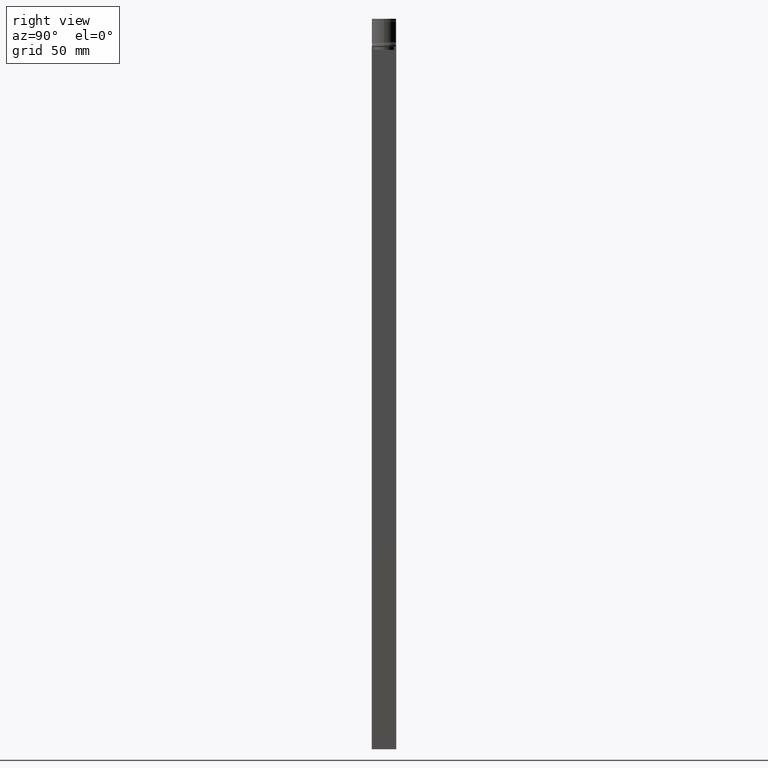
[diagram: clean part render]
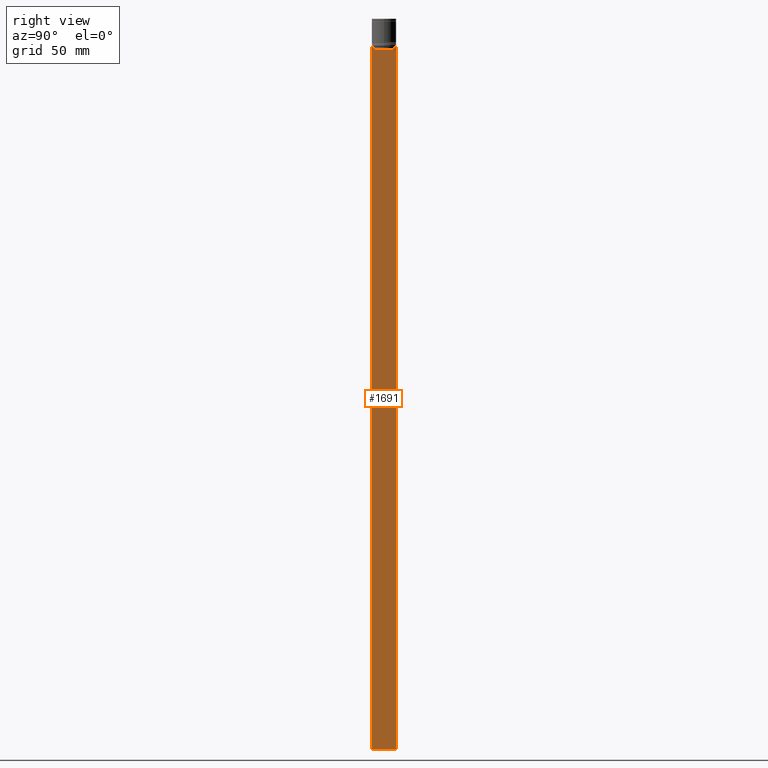
[diagram: same view with one face highlighted and labeled with its STEP entity id]
A machine part, right view. The second image highlights one B-rep face of the part: STEP entity #1691.
In plain terms, the highlighted planar face has unit normal (-1, 0, 0).
Its self-contained STEP definition (entity closure, byte-faithful):
#1 = ORIENTED_EDGE ( 'NONE', *, *, #1258, .T. ) ;
#3 = VECTOR ( 'NONE', #448, 1000.000000000000000 ) ;
#28 = CARTESIAN_POINT ( 'NONE',  ( 0.5000000000000000000, -10.00000000000000178, -22.50000000000000000 ) ) ;
#32 = VECTOR ( 'NONE', #1974, 1000.000000000000000 ) ;
#61 = ORIENTED_EDGE ( 'NONE', *, *, #1421, .T. ) ;
#78 = CARTESIAN_POINT ( 'NONE',  ( 0.5000000000000000000, 8.385105843100610912, -23.00000000000000000 ) ) ;
#100 = CARTESIAN_POINT ( 'NONE',  ( 0.5000000000000000000, 8.400000000000000355, -25.50000000000000000 ) ) ;
#103 = CARTESIAN_POINT ( 'NONE',  ( 0.5000000000000000000, -9.887365675446622149, -22.50000000000000000 ) ) ;
#117 = CARTESIAN_POINT ( 'NONE',  ( 0.5000000000000000000, -8.385105843100610912, 0.000000000000000000 ) ) ;
#122 = CARTESIAN_POINT ( 'NONE',  ( 0.5000000000000000000, 8.385105843100610912, -25.50000000000000000 ) ) ;
#134 = VERTEX_POINT ( 'NONE', #1927 ) ;
#144 = CARTESIAN_POINT ( 'NONE',  ( 0.5000000000000000000, -10.00000000000000178, -22.50000000000000000 ) ) ;
#176 = CARTESIAN_POINT ( 'NONE',  ( 0.5000000000000000000, -10.00000000000000178, -22.50000000000000000 ) ) ;
#189 = ORIENTED_EDGE ( 'NONE', *, *, #1727, .T. ) ;
#200 = ORIENTED_EDGE ( 'NONE', *, *, #378, .F. ) ;
#226 = ORIENTED_EDGE ( 'NONE', *, *, #227, .T. ) ;
#227 = EDGE_CURVE ( 'NONE', #1530, #259, #487, .T. ) ;
#254 = DIRECTION ( 'NONE',  ( -1.000000000000000000, 0.000000000000000000, 0.000000000000000000 ) ) ;
#259 = VERTEX_POINT ( 'NONE', #28 ) ;
#273 = ORIENTED_EDGE ( 'NONE', *, *, #1766, .T. ) ;
#279 = LINE ( 'NONE', #590, #741 ) ;
#283 = LINE ( 'NONE', #117, #3 ) ;
#324 = VERTEX_POINT ( 'NONE', #122 ) ;
#336 = VECTOR ( 'NONE', #1130, 1000.000000000000000 ) ;
#337 = CARTESIAN_POINT ( 'NONE',  ( 0.5000000000000000000, 9.999999999999998224, -596.4999999999998863 ) ) ;
#346 = ORIENTED_EDGE ( 'NONE', *, *, #1272, .T. ) ;
#355 = VERTEX_POINT ( 'NONE', #1667 ) ;
#371 = VECTOR ( 'NONE', #1297, 1000.000000000000000 ) ;
#378 = EDGE_CURVE ( 'NONE', #518, #996, #1013, .T. ) ;
#389 = LINE ( 'NONE', #1693, #32 ) ;
#395 = ORIENTED_EDGE ( 'NONE', *, *, #1035, .T. ) ;
#398 = EDGE_CURVE ( 'NONE', #1839, #996, #1471, .T. ) ;
#405 = CARTESIAN_POINT ( 'NONE',  ( 0.5000000000000000000, -10.00000000000000178, -2.475015605499213844 ) ) ;
#424 = CARTESIAN_POINT ( 'NONE',  ( 0.5000000000000000000, 8.885943956609226646, -22.50000000000000000 ) ) ;
#431 = CARTESIAN_POINT ( 'NONE',  ( 0.5000000000000000000, -8.385105843100610912, -23.00000000000000000 ) ) ;
#436 = VECTOR ( 'NONE', #1926, 1000.000000000000000 ) ;
#448 = DIRECTION ( 'NONE',  ( -0.000000000000000000, -0.000000000000000000, 1.000000000000000000 ) ) ;
#454 = DIRECTION ( 'NONE',  ( 0.000000000000000000, 0.000000000000000000, -1.000000000000000000 ) ) ;
#472 = AXIS2_PLACEMENT_3D ( 'NONE', #405, #254, #1183 ) ;
#474 = CARTESIAN_POINT ( 'NONE',  ( 0.5000000000000000000, 9.999999999999998224, -2.475015605499213844 ) ) ;
#486 = VERTEX_POINT ( 'NONE', #1735 ) ;
#487 = LINE ( 'NONE', #176, #336 ) ;
#498 = VECTOR ( 'NONE', #783, 1000.000000000000000 ) ;
#511 = EDGE_CURVE ( 'NONE', #134, #1530, #1586, .T. ) ;
#518 = VERTEX_POINT ( 'NONE', #1768 ) ;
#544 = FACE_OUTER_BOUND ( 'NONE', #813, .T. ) ;
#573 = CARTESIAN_POINT ( 'NONE',  ( 0.5000000000000000000, 9.887365675446622149, -22.50000000000000000 ) ) ;
#582 = DIRECTION ( 'NONE',  ( 0.000000000000000000, -1.000000000000000000, 0.000000000000000000 ) ) ;
#590 = CARTESIAN_POINT ( 'NONE',  ( 0.5000000000000000000, 8.385105843100610912, 0.000000000000000000 ) ) ;
#668 = CARTESIAN_POINT ( 'NONE',  ( 0.5000000000000000000, -10.00000000000000178, -596.4999999999998863 ) ) ;
#724 = ORIENTED_EDGE ( 'NONE', *, *, #1359, .T. ) ;
#731 = CARTESIAN_POINT ( 'NONE',  ( 0.5000000000000000000, 8.552060201981371179, -22.83334167021640582 ) ) ;
#741 = VECTOR ( 'NONE', #454, 1000.000000000000000 ) ;
#750 = CARTESIAN_POINT ( 'NONE',  ( 0.5000000000000000000, -8.719005764482785636, -22.66667454151159333 ) ) ;
#783 = DIRECTION ( 'NONE',  ( 0.000000000000000000, -1.000000000000000000, 0.000000000000000000 ) ) ;
#798 = VERTEX_POINT ( 'NONE', #1369 ) ;
#813 = EDGE_LOOP ( 'NONE', ( #1306, #61, #189, #1, #346, #273, #2060, #226, #724, #843, #200, #395 ) ) ;
#843 = ORIENTED_EDGE ( 'NONE', *, *, #398, .T. ) ;
#884 = B_SPLINE_CURVE_WITH_KNOTS ( 'NONE', 3,
 ( #424, #1687, #731, #1376 ),
 .UNSPECIFIED., .F., .F.,
 ( 4, 4 ),
 ( 0.01511546479386905242, 0.01582316445439077568 ),
 .UNSPECIFIED. ) ;
#963 = LINE ( 'NONE', #2084, #436 ) ;
#996 = VERTEX_POINT ( 'NONE', #337 ) ;
#1013 = LINE ( 'NONE', #474, #371 ) ;
#1035 = EDGE_CURVE ( 'NONE', #518, #1264, #1124, .T. ) ;
#1061 = DIRECTION ( 'NONE',  ( 0.000000000000000000, 1.000000000000000000, 0.000000000000000000 ) ) ;
#1078 = B_SPLINE_CURVE_WITH_KNOTS ( 'NONE', 3,
 ( #431, #1265, #750, #1713 ),
 .UNSPECIFIED., .F., .F.,
 ( 4, 4 ),
 ( 0.03898465126933124691, 0.03969388910599652709 ),
 .UNSPECIFIED. ) ;
#1124 = LINE ( 'NONE', #1925, #1485 ) ;
#1130 = DIRECTION ( 'NONE',  ( 0.000000000000000000, -1.000000000000000000, 0.000000000000000000 ) ) ;
#1183 = DIRECTION ( 'NONE',  ( 0.000000000000000000, 0.000000000000000000, 1.000000000000000000 ) ) ;
#1258 = EDGE_CURVE ( 'NONE', #324, #486, #1544, .T. ) ;
#1264 = VERTEX_POINT ( 'NONE', #573 ) ;
#1265 = CARTESIAN_POINT ( 'NONE',  ( 0.5000000000000000000, -8.552060194457766329, -22.83334167772666845 ) ) ;
#1272 = EDGE_CURVE ( 'NONE', #486, #798, #283, .T. ) ;
#1280 = VECTOR ( 'NONE', #582, 1000.000000000000000 ) ;
#1297 = DIRECTION ( 'NONE',  ( 0.000000000000000000, 0.000000000000000000, -1.000000000000000000 ) ) ;
#1306 = ORIENTED_EDGE ( 'NONE', *, *, #1596, .T. ) ;
#1359 = EDGE_CURVE ( 'NONE', #259, #1839, #963, .T. ) ;
#1369 = CARTESIAN_POINT ( 'NONE',  ( 0.5000000000000000000, -8.385105843100610912, -23.00000000000000000 ) ) ;
#1376 = CARTESIAN_POINT ( 'NONE',  ( 0.5000000000000000000, 8.385105843100610912, -23.00000000000000000 ) ) ;
#1421 = EDGE_CURVE ( 'NONE', #355, #1989, #884, .T. ) ;
#1471 = LINE ( 'NONE', #668, #1642 ) ;
#1485 = VECTOR ( 'NONE', #1759, 1000.000000000000000 ) ;
#1509 = PLANE ( 'NONE',  #472 ) ;
#1530 = VERTEX_POINT ( 'NONE', #103 ) ;
#1544 = LINE ( 'NONE', #100, #1280 ) ;
#1586 = LINE ( 'NONE', #144, #498 ) ;
#1596 = EDGE_CURVE ( 'NONE', #1264, #355, #389, .T. ) ;
#1642 = VECTOR ( 'NONE', #1061, 1000.000000000000000 ) ;
#1667 = CARTESIAN_POINT ( 'NONE',  ( 0.5000000000000000000, 8.885943956609226646, -22.50000000000000000 ) ) ;
#1687 = CARTESIAN_POINT ( 'NONE',  ( 0.5000000000000000000, 8.719005771582343911, -22.66667453442325453 ) ) ;
#1691 = ADVANCED_FACE ( 'NONE', ( #544 ), #1509, .F. ) ;
#1693 = CARTESIAN_POINT ( 'NONE',  ( 0.5000000000000000000, -10.00000000000000178, -22.50000000000000000 ) ) ;
#1713 = CARTESIAN_POINT ( 'NONE',  ( 0.5000000000000000000, -8.885943956609226646, -22.50000000000000000 ) ) ;
#1727 = EDGE_CURVE ( 'NONE', #1989, #324, #279, .T. ) ;
#1735 = CARTESIAN_POINT ( 'NONE',  ( 0.5000000000000000000, -8.385105843100610912, -25.50000000000000000 ) ) ;
#1757 = CARTESIAN_POINT ( 'NONE',  ( 0.5000000000000000000, -10.00000000000000178, -596.4999999999998863 ) ) ;
#1759 = DIRECTION ( 'NONE',  ( 0.000000000000000000, -1.000000000000000000, 0.000000000000000000 ) ) ;
#1766 = EDGE_CURVE ( 'NONE', #798, #134, #1078, .T. ) ;
#1768 = CARTESIAN_POINT ( 'NONE',  ( 0.5000000000000000000, 9.999999999999998224, -22.50000000000000000 ) ) ;
#1839 = VERTEX_POINT ( 'NONE', #1757 ) ;
#1925 = CARTESIAN_POINT ( 'NONE',  ( 0.5000000000000000000, -10.00000000000000178, -22.50000000000000000 ) ) ;
#1926 = DIRECTION ( 'NONE',  ( 0.000000000000000000, 0.000000000000000000, -1.000000000000000000 ) ) ;
#1927 = CARTESIAN_POINT ( 'NONE',  ( 0.5000000000000000000, -8.885943956609226646, -22.50000000000000000 ) ) ;
#1974 = DIRECTION ( 'NONE',  ( 0.000000000000000000, -1.000000000000000000, 0.000000000000000000 ) ) ;
#1989 = VERTEX_POINT ( 'NONE', #78 ) ;
#2060 = ORIENTED_EDGE ( 'NONE', *, *, #511, .T. ) ;
#2084 = CARTESIAN_POINT ( 'NONE',  ( 0.5000000000000000000, -10.00000000000000178, -2.475015605499213844 ) ) ;